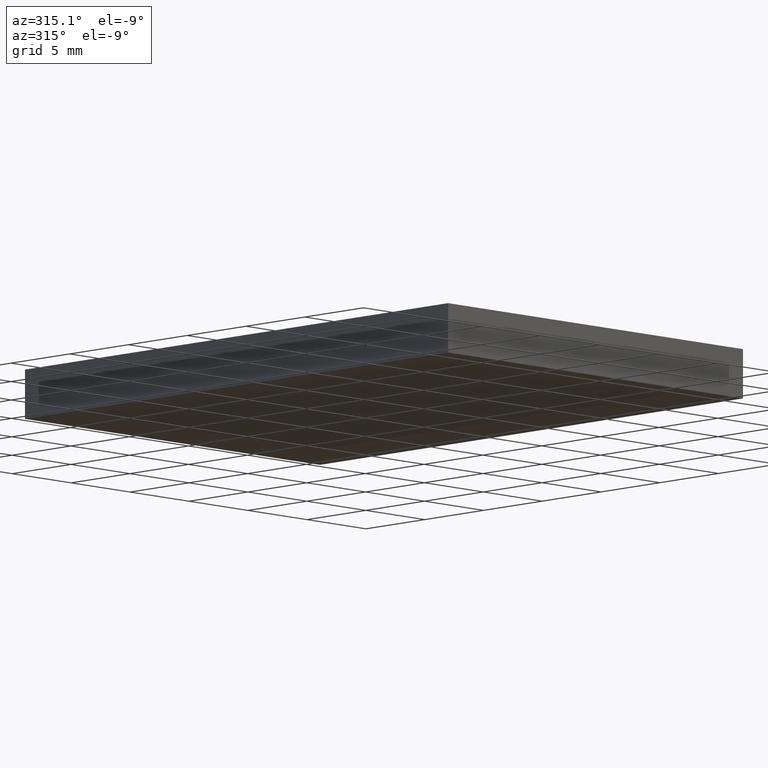
[diagram: clean part render]
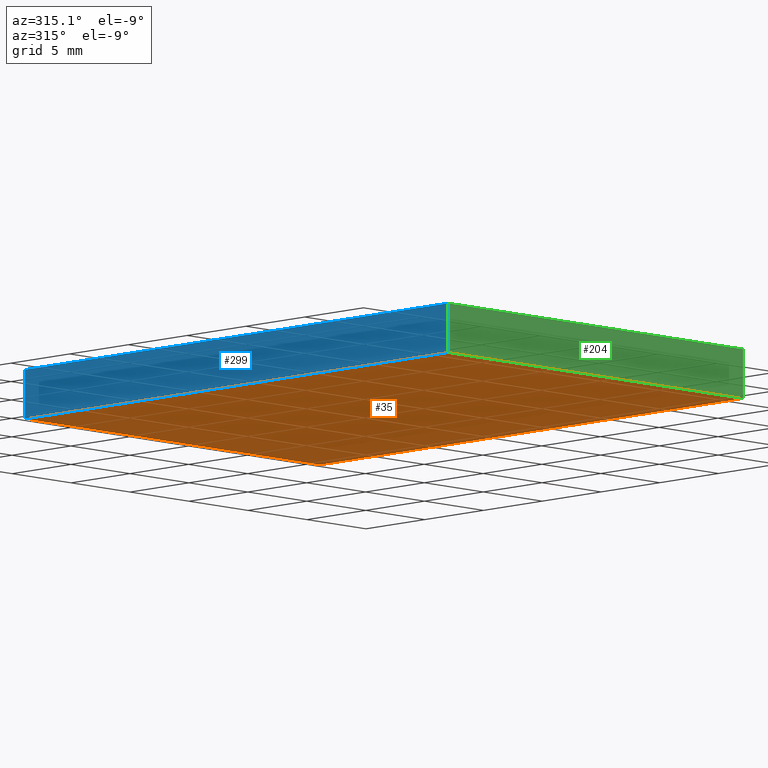
[diagram: same view with three faces highlighted in distinct colors, each labeled with its STEP entity id]
A machine part, auxiliary view with three faces highlighted in distinct colors.
Their STEP definitions:

[orange] entity #35 — the highlighted planar face has unit normal (-0, 0, 1).
#21 = DIRECTION ( 'NONE',  ( -2.891205793294678800E-016, 1.000000000000000000, -0.0000000000000000000 ) ) ;
#28 = CARTESIAN_POINT ( 'NONE',  ( -6.351626016260162500, 7.520325203252024700, 0.0000000000000000000 ) ) ;
#29 = ORIENTED_EDGE ( 'NONE', *, *, #250, .F. ) ;
#35 = ADVANCED_FACE ( 'NONE', ( #263 ), #147, .F. ) ;
#44 = LINE ( 'NONE', #195, #262 ) ;
#64 = CARTESIAN_POINT ( 'NONE',  ( -6.351626016260162500, 7.520325203252024700, 0.0000000000000000000 ) ) ;
#74 = LINE ( 'NONE', #64, #301 ) ;
#83 = VECTOR ( 'NONE', #198, 1000.000000000000000 ) ;
#84 = EDGE_LOOP ( 'NONE', ( #185, #269, #29, #88 ) ) ;
#88 = ORIENTED_EDGE ( 'NONE', *, *, #109, .F. ) ;
#95 = LINE ( 'NONE', #264, #281 ) ;
#109 = EDGE_CURVE ( 'NONE', #257, #224, #44, .T. ) ;
#115 = DIRECTION ( 'NONE',  ( 1.204669080539449300E-016, -1.000000000000000000, 0.0000000000000000000 ) ) ;
#116 = CARTESIAN_POINT ( 'NONE',  ( 0.0000000000000000000, 0.0000000000000000000, 0.0000000000000000000 ) ) ;
#121 = VERTEX_POINT ( 'NONE', #152 ) ;
#147 = PLANE ( 'NONE',  #271 ) ;
#152 = CARTESIAN_POINT ( 'NONE',  ( -6.351626016260162500, 7.520325203252024700, 0.0000000000000000000 ) ) ;
#153 = EDGE_CURVE ( 'NONE', #154, #121, #211, .T. ) ;
#154 = VERTEX_POINT ( 'NONE', #314 ) ;
#162 = DIRECTION ( 'NONE',  ( 1.000000000000000000, 0.0000000000000000000, 0.0000000000000000000 ) ) ;
#185 = ORIENTED_EDGE ( 'NONE', *, *, #313, .F. ) ;
#190 = CARTESIAN_POINT ( 'NONE',  ( -6.351626016260158100, -28.47967479674797200, 0.0000000000000000000 ) ) ;
#195 = CARTESIAN_POINT ( 'NONE',  ( -6.351626016260158100, -28.47967479674797200, 0.0000000000000000000 ) ) ;
#198 = DIRECTION ( 'NONE',  ( -1.000000000000000000, -0.0000000000000000000, -0.0000000000000000000 ) ) ;
#211 = LINE ( 'NONE', #28, #83 ) ;
#224 = VERTEX_POINT ( 'NONE', #287 ) ;
#250 = EDGE_CURVE ( 'NONE', #224, #154, #95, .T. ) ;
#256 = DIRECTION ( 'NONE',  ( -0.0000000000000000000, 0.0000000000000000000, 1.000000000000000000 ) ) ;
#257 = VERTEX_POINT ( 'NONE', #190 ) ;
#262 = VECTOR ( 'NONE', #162, 1000.000000000000000 ) ;
#263 = FACE_OUTER_BOUND ( 'NONE', #84, .T. ) ;
#264 = CARTESIAN_POINT ( 'NONE',  ( 18.64837398373983700, 7.520325203252024700, 0.0000000000000000000 ) ) ;
#269 = ORIENTED_EDGE ( 'NONE', *, *, #153, .F. ) ;
#271 = AXIS2_PLACEMENT_3D ( 'NONE', #116, #256, #309 ) ;
#281 = VECTOR ( 'NONE', #21, 1000.000000000000000 ) ;
#287 = CARTESIAN_POINT ( 'NONE',  ( 18.64837398373984800, -28.47967479674797200, 0.0000000000000000000 ) ) ;
#301 = VECTOR ( 'NONE', #115, 1000.000000000000000 ) ;
#309 = DIRECTION ( 'NONE',  ( 1.000000000000000000, 0.0000000000000000000, 0.0000000000000000000 ) ) ;
#313 = EDGE_CURVE ( 'NONE', #121, #257, #74, .T. ) ;
#314 = CARTESIAN_POINT ( 'NONE',  ( 18.64837398373983700, 7.520325203252024700, 0.0000000000000000000 ) ) ;

[blue] entity #299 — the highlighted planar face has unit normal (1, 0, -0).
#12 = DIRECTION ( 'NONE',  ( 1.204669080539449300E-016, -1.000000000000000000, 0.0000000000000000000 ) ) ;
#13 = EDGE_CURVE ( 'NONE', #205, #121, #51, .T. ) ;
#20 = CARTESIAN_POINT ( 'NONE',  ( -6.351626016260158100, -28.47967479674797200, 3.000000000000000000 ) ) ;
#39 = CARTESIAN_POINT ( 'NONE',  ( -6.351626016260162500, 7.520325203252024700, 3.000000000000000000 ) ) ;
#41 = CARTESIAN_POINT ( 'NONE',  ( -6.351626016260162500, 7.520325203252024700, 3.000000000000000000 ) ) ;
#45 = EDGE_CURVE ( 'NONE', #205, #182, #237, .T. ) ;
#51 = LINE ( 'NONE', #39, #199 ) ;
#56 = ORIENTED_EDGE ( 'NONE', *, *, #45, .F. ) ;
#64 = CARTESIAN_POINT ( 'NONE',  ( -6.351626016260162500, 7.520325203252024700, 0.0000000000000000000 ) ) ;
#65 = CARTESIAN_POINT ( 'NONE',  ( -6.351626016260162500, 7.520325203252024700, 3.000000000000000000 ) ) ;
#68 = PLANE ( 'NONE',  #193 ) ;
#74 = LINE ( 'NONE', #64, #301 ) ;
#90 = DIRECTION ( 'NONE',  ( -1.204669080539449300E-016, 1.000000000000000000, 0.0000000000000000000 ) ) ;
#115 = DIRECTION ( 'NONE',  ( 1.204669080539449300E-016, -1.000000000000000000, 0.0000000000000000000 ) ) ;
#118 = EDGE_LOOP ( 'NONE', ( #146, #245, #56, #282 ) ) ;
#121 = VERTEX_POINT ( 'NONE', #152 ) ;
#136 = EDGE_CURVE ( 'NONE', #182, #257, #172, .T. ) ;
#146 = ORIENTED_EDGE ( 'NONE', *, *, #313, .T. ) ;
#152 = CARTESIAN_POINT ( 'NONE',  ( -6.351626016260162500, 7.520325203252024700, 0.0000000000000000000 ) ) ;
#159 = FACE_OUTER_BOUND ( 'NONE', #118, .T. ) ;
#168 = CARTESIAN_POINT ( 'NONE',  ( -6.351626016260162500, 7.520325203252024700, 3.000000000000000000 ) ) ;
#169 = VECTOR ( 'NONE', #272, 1000.000000000000000 ) ;
#172 = LINE ( 'NONE', #217, #169 ) ;
#173 = VECTOR ( 'NONE', #12, 1000.000000000000000 ) ;
#182 = VERTEX_POINT ( 'NONE', #20 ) ;
#190 = CARTESIAN_POINT ( 'NONE',  ( -6.351626016260158100, -28.47967479674797200, 0.0000000000000000000 ) ) ;
#193 = AXIS2_PLACEMENT_3D ( 'NONE', #41, #209, #90 ) ;
#199 = VECTOR ( 'NONE', #289, 1000.000000000000000 ) ;
#205 = VERTEX_POINT ( 'NONE', #65 ) ;
#209 = DIRECTION ( 'NONE',  ( 1.000000000000000000, 1.204669080539449300E-016, -0.0000000000000000000 ) ) ;
#217 = CARTESIAN_POINT ( 'NONE',  ( -6.351626016260158100, -28.47967479674797200, 3.000000000000000000 ) ) ;
#237 = LINE ( 'NONE', #168, #173 ) ;
#245 = ORIENTED_EDGE ( 'NONE', *, *, #136, .F. ) ;
#257 = VERTEX_POINT ( 'NONE', #190 ) ;
#272 = DIRECTION ( 'NONE',  ( -0.0000000000000000000, -0.0000000000000000000, -1.000000000000000000 ) ) ;
#282 = ORIENTED_EDGE ( 'NONE', *, *, #13, .T. ) ;
#289 = DIRECTION ( 'NONE',  ( -0.0000000000000000000, -0.0000000000000000000, -1.000000000000000000 ) ) ;
#299 = ADVANCED_FACE ( 'NONE', ( #159 ), #68, .F. ) ;
#301 = VECTOR ( 'NONE', #115, 1000.000000000000000 ) ;
#313 = EDGE_CURVE ( 'NONE', #121, #257, #74, .T. ) ;

[green] entity #204 — the highlighted planar face has unit normal (0, 1, 0).
#11 = ORIENTED_EDGE ( 'NONE', *, *, #180, .F. ) ;
#19 = DIRECTION ( 'NONE',  ( 1.000000000000000000, 0.0000000000000000000, 0.0000000000000000000 ) ) ;
#20 = CARTESIAN_POINT ( 'NONE',  ( -6.351626016260158100, -28.47967479674797200, 3.000000000000000000 ) ) ;
#44 = LINE ( 'NONE', #195, #262 ) ;
#72 = CARTESIAN_POINT ( 'NONE',  ( -6.351626016260158100, -28.47967479674797200, 3.000000000000000000 ) ) ;
#78 = EDGE_LOOP ( 'NONE', ( #189, #275, #11, #307 ) ) ;
#102 = FACE_OUTER_BOUND ( 'NONE', #78, .T. ) ;
#109 = EDGE_CURVE ( 'NONE', #257, #224, #44, .T. ) ;
#136 = EDGE_CURVE ( 'NONE', #182, #257, #172, .T. ) ;
#141 = VERTEX_POINT ( 'NONE', #312 ) ;
#162 = DIRECTION ( 'NONE',  ( 1.000000000000000000, 0.0000000000000000000, 0.0000000000000000000 ) ) ;
#164 = CARTESIAN_POINT ( 'NONE',  ( 18.64837398373984800, -28.47967479674797200, 3.000000000000000000 ) ) ;
#167 = DIRECTION ( 'NONE',  ( 0.0000000000000000000, 1.000000000000000000, 0.0000000000000000000 ) ) ;
#169 = VECTOR ( 'NONE', #272, 1000.000000000000000 ) ;
#172 = LINE ( 'NONE', #217, #169 ) ;
#174 = AXIS2_PLACEMENT_3D ( 'NONE', #266, #167, #187 ) ;
#180 = EDGE_CURVE ( 'NONE', #182, #141, #288, .T. ) ;
#182 = VERTEX_POINT ( 'NONE', #20 ) ;
#186 = PLANE ( 'NONE',  #174 ) ;
#187 = DIRECTION ( 'NONE',  ( 0.0000000000000000000, -0.0000000000000000000, 1.000000000000000000 ) ) ;
#189 = ORIENTED_EDGE ( 'NONE', *, *, #109, .T. ) ;
#190 = CARTESIAN_POINT ( 'NONE',  ( -6.351626016260158100, -28.47967479674797200, 0.0000000000000000000 ) ) ;
#195 = CARTESIAN_POINT ( 'NONE',  ( -6.351626016260158100, -28.47967479674797200, 0.0000000000000000000 ) ) ;
#204 = ADVANCED_FACE ( 'NONE', ( #102 ), #186, .F. ) ;
#216 = LINE ( 'NONE', #164, #253 ) ;
#217 = CARTESIAN_POINT ( 'NONE',  ( -6.351626016260158100, -28.47967479674797200, 3.000000000000000000 ) ) ;
#223 = VECTOR ( 'NONE', #19, 1000.000000000000000 ) ;
#224 = VERTEX_POINT ( 'NONE', #287 ) ;
#253 = VECTOR ( 'NONE', #259, 1000.000000000000000 ) ;
#257 = VERTEX_POINT ( 'NONE', #190 ) ;
#259 = DIRECTION ( 'NONE',  ( -0.0000000000000000000, -0.0000000000000000000, -1.000000000000000000 ) ) ;
#262 = VECTOR ( 'NONE', #162, 1000.000000000000000 ) ;
#266 = CARTESIAN_POINT ( 'NONE',  ( -6.351626016260158100, -28.47967479674797200, 3.000000000000000000 ) ) ;
#272 = DIRECTION ( 'NONE',  ( -0.0000000000000000000, -0.0000000000000000000, -1.000000000000000000 ) ) ;
#275 = ORIENTED_EDGE ( 'NONE', *, *, #300, .F. ) ;
#287 = CARTESIAN_POINT ( 'NONE',  ( 18.64837398373984800, -28.47967479674797200, 0.0000000000000000000 ) ) ;
#288 = LINE ( 'NONE', #72, #223 ) ;
#300 = EDGE_CURVE ( 'NONE', #141, #224, #216, .T. ) ;
#307 = ORIENTED_EDGE ( 'NONE', *, *, #136, .T. ) ;
#312 = CARTESIAN_POINT ( 'NONE',  ( 18.64837398373984800, -28.47967479674797200, 3.000000000000000000 ) ) ;